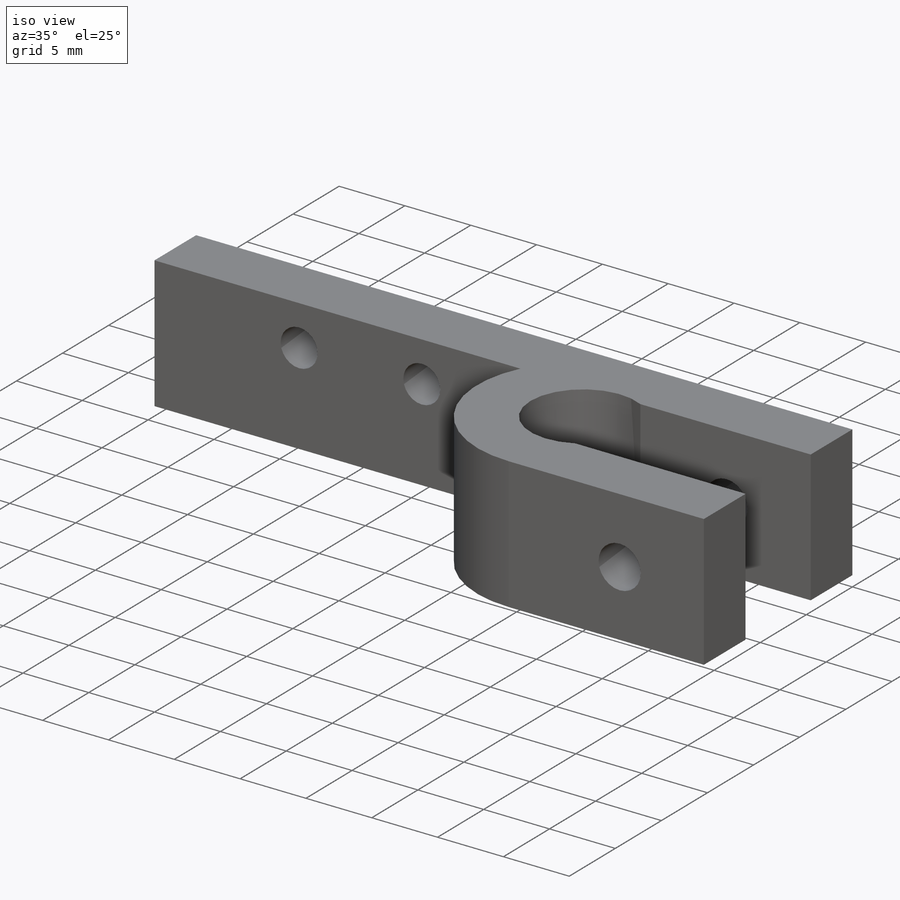
[diagram: iso view]
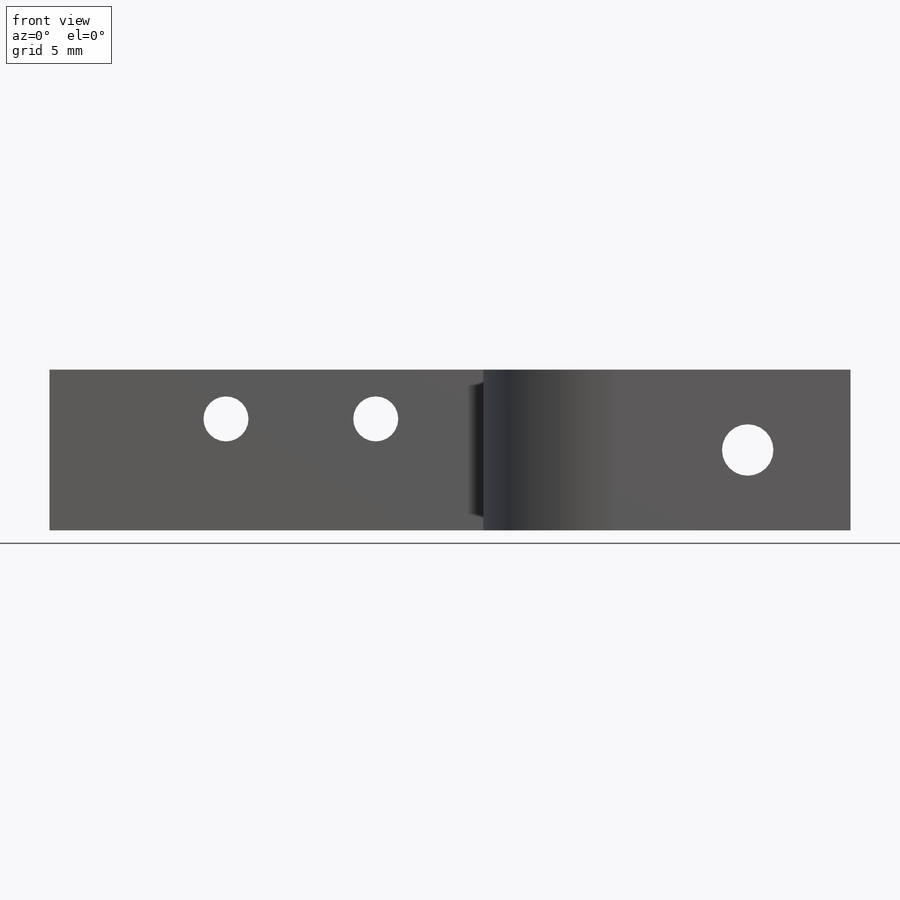
[diagram: front view]
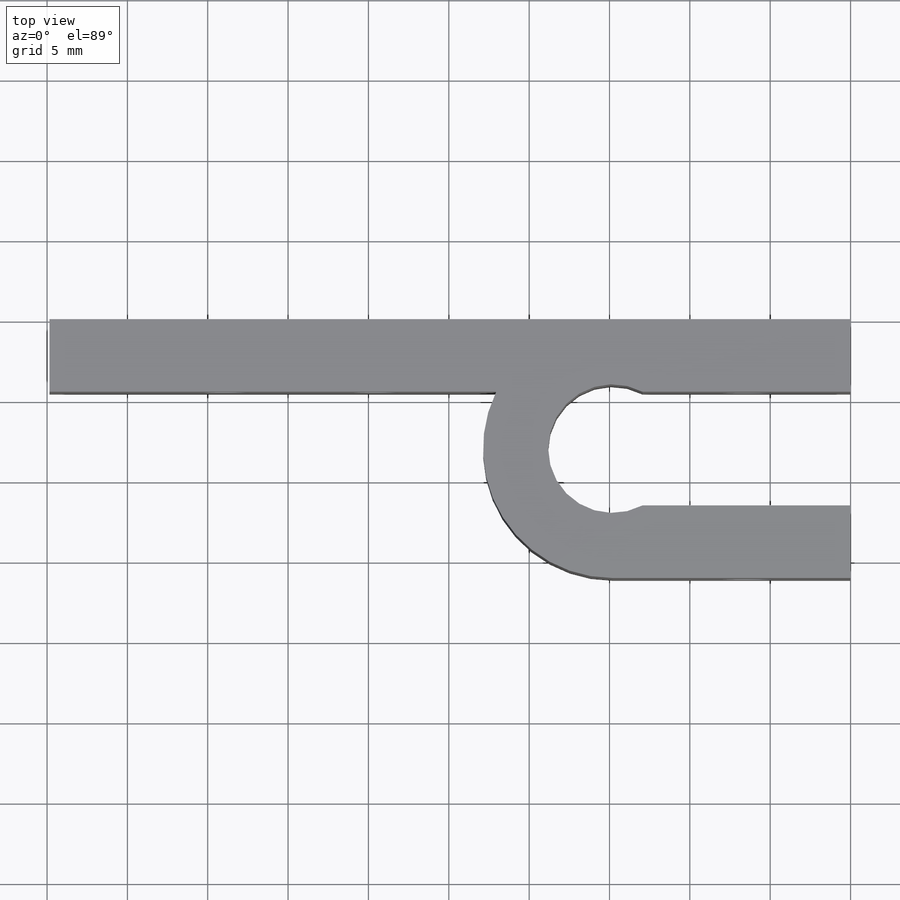
[diagram: top view]
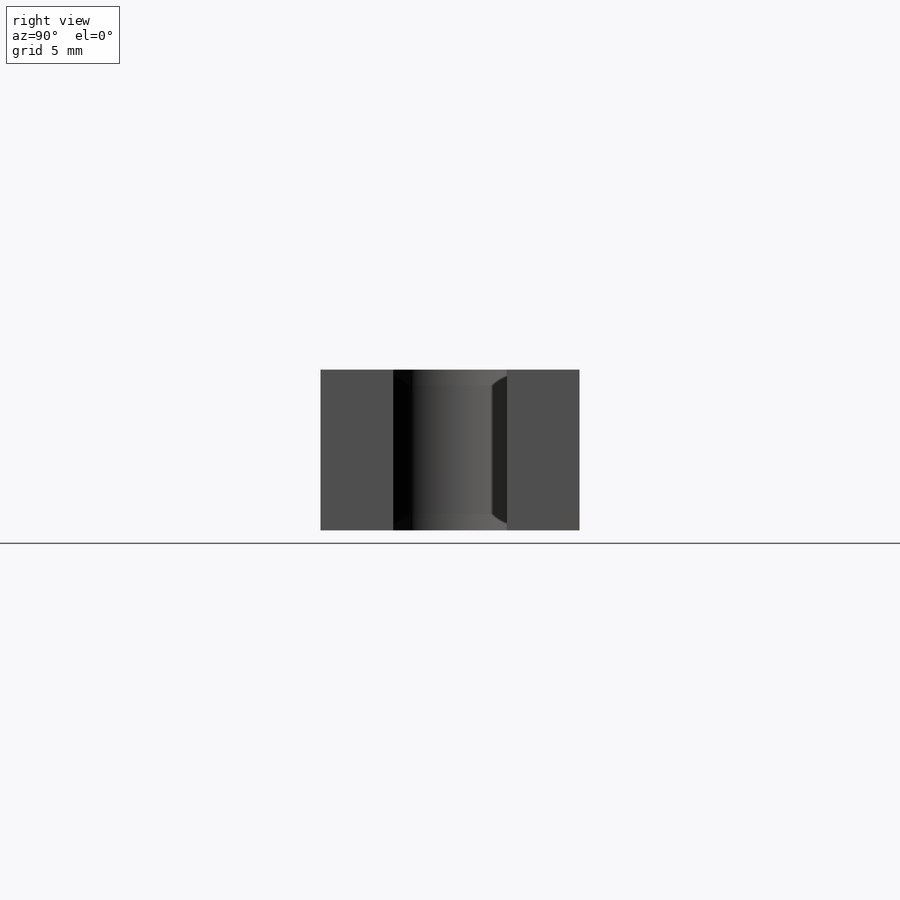
[diagram: right view]
SOLIDWORKS PART (.sldprt)
format: sldprt  version: not decoded by parser v0  size: 380,928 bytes
history: native  units: mm
features: sketch x4, cut_extrude x3, material x1, extrude x1 (+16 scaffold rows collapsed)
feature tree (25):
  scaffold x16  (default folders/planes/origin — collapsed)
  material  "Material <not specified>"
  sketch  "Sketch1"  dims[c1.D1=10.0mm c1.D2=10.0mm c1.D3=10.0mm c1.D4=10.0mm c1.D5=8.055mm c1.D6=~10.44517mm c2.D1=49.85mm c2.D2=4.52mm c2.D3=4.52mm c2.D4=16.11mm c2.D5=22.87mm c2.D6=8.055mm]
  extrude  "Boss-Extrude1"  Depth=10.01mm
  sketch  "Sketch2"  dims[D1=3.45mm]
  cut_extrude  "Cut-Extrude1"  [1 undecoded]
  sketch  "Sketch3"  dims[c1.D1=~2.546753mm c1.D2=3.2mm c2.D1=4.2mm]
  cut_extrude  "Cut-Extrude2"  [1 undecoded]
  sketch  "Sketch5"  dims[c1.D1=2.8mm c1.D2=3.2mm c1.D4=2.8mm c2.D2=4.62mm c2.D3=9.32mm c2.D5=7.97mm c2.D6=2.04mm c3.D5=3.07mm]
  cut_extrude  "Cut-Extrude3"  [1 undecoded]
decode coverage: 5 of 8 modeling features carry decoded parameters
note: ~ marks probable driven/reference dimensions
note: 3 parameter values undecoded
summary: no parameter record found for 3 features
note: suppression state not decoded; provenance and decode notes live in map.json
